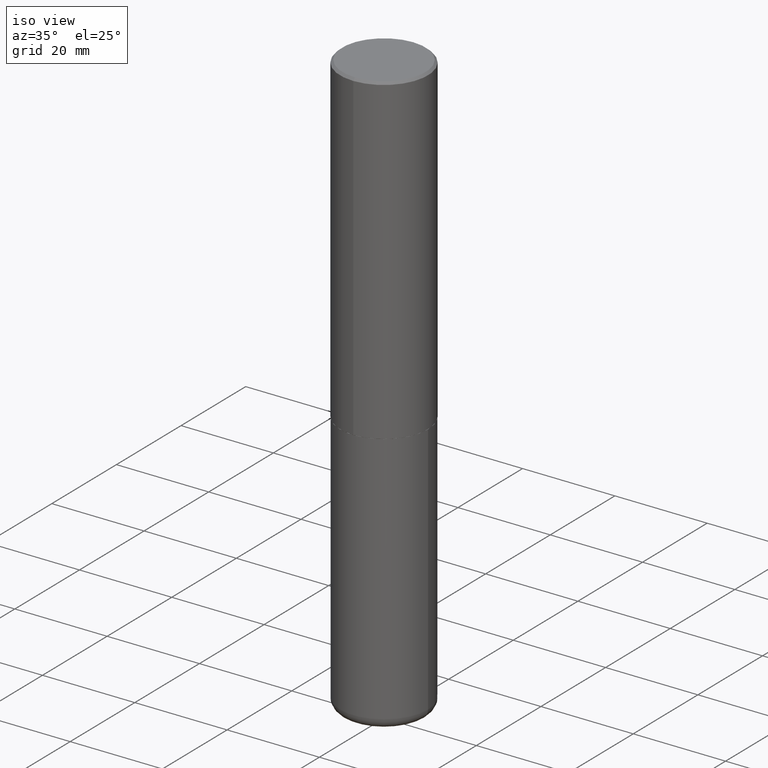
[diagram: clean part render]
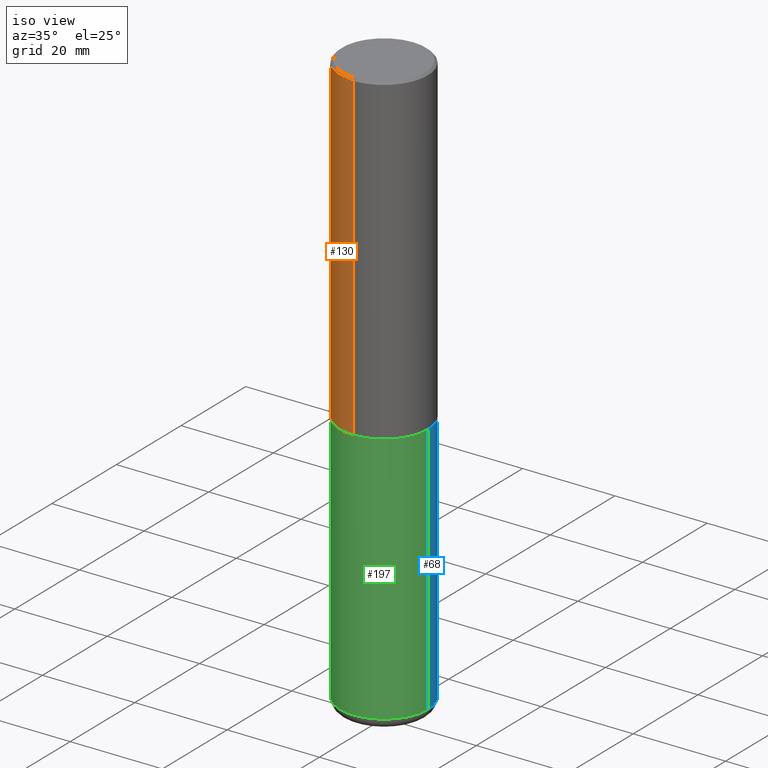
[diagram: same view with three faces highlighted in distinct colors, each labeled with its STEP entity id]
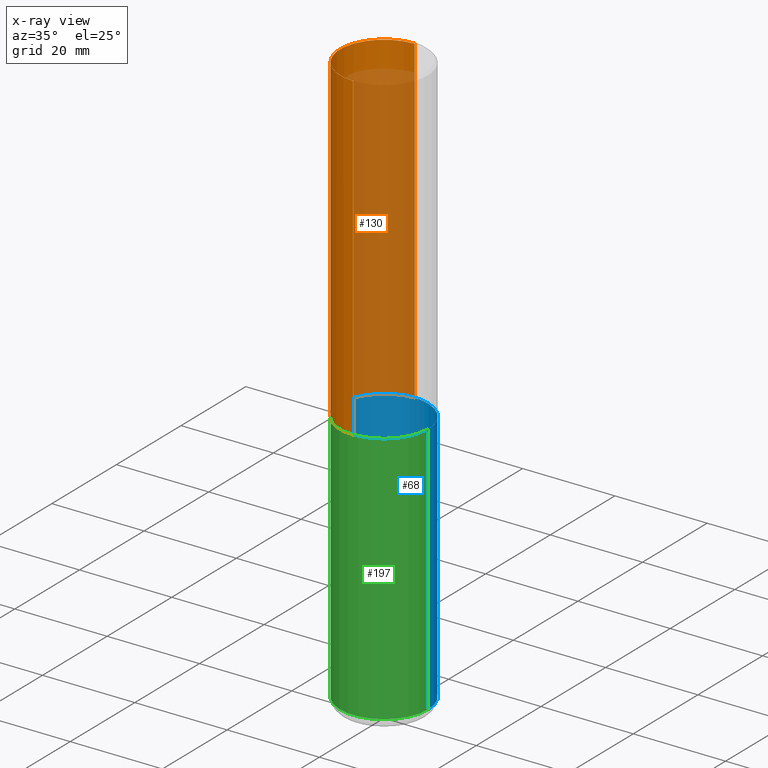
[diagram: x-ray of the same camera — body ghosted, the three highlighted faces saturated]
A machine part, iso view with three faces highlighted in distinct colors.
The next image is the same camera in x-ray (body ghosted, the three faces saturated) — at least one of them is partly hidden behind the body in this view.
Their STEP definitions:

[orange] entity #130 — the highlighted cylindrical surface (partial cylindrical patch) has radius 9.525 mm, axis along (-0, 0, 1).
#3 = EDGE_CURVE ( 'NONE', #241, #293, #377, .T. ) ;
#6 = CARTESIAN_POINT ( 'NONE',  ( 6.724165036897648492E-29, -9.595832025636787455E-15, -2.749000000000000110 ) ) ;
#17 = VECTOR ( 'NONE', #99, 39.37007874015748143 ) ;
#27 = CARTESIAN_POINT ( 'NONE',  ( -2.618611004132351594E-15, -0.3750000000000002220, 1.308998548422625521E-15 ) ) ;
#52 = VERTEX_POINT ( 'NONE', #280 ) ;
#60 = DIRECTION ( 'NONE',  ( -2.446040391741596606E-29, 3.490662795793665557E-15, 1.000000000000000000 ) ) ;
#70 = CARTESIAN_POINT ( 'NONE',  ( 0.000000000000000000, 0.000000000000000000, 0.000000000000000000 ) ) ;
#72 = CIRCLE ( 'NONE', #303, 0.3750000000000000555 ) ;
#84 = ORIENTED_EDGE ( 'NONE', *, *, #3, .T. ) ;
#99 = DIRECTION ( 'NONE',  ( -2.446040391741596606E-29, 3.490662795793665557E-15, 1.000000000000000000 ) ) ;
#105 = FACE_OUTER_BOUND ( 'NONE', #403, .T. ) ;
#130 = ADVANCED_FACE ( 'NONE', ( #105 ), #386, .T. ) ;
#131 = CARTESIAN_POINT ( 'NONE',  ( -2.618611004132284935E-15, -0.3750000000000099920, -2.748999999999999222 ) ) ;
#146 = CARTESIAN_POINT ( 'NONE',  ( 2.664535259100411196E-15, 0.3749999999999907296, -2.749000000000000998 ) ) ;
#164 = CARTESIAN_POINT ( 'NONE',  ( 2.664535259100376880E-15, 0.3750000000000002220, -1.308998548422625521E-15 ) ) ;
#169 = ORIENTED_EDGE ( 'NONE', *, *, #283, .T. ) ;
#202 = CARTESIAN_POINT ( 'NONE',  ( -2.572686749164323547E-15, -0.3750000000000001110, -0.01999999999999877570 ) ) ;
#203 = EDGE_CURVE ( 'NONE', #348, #52, #417, .T. ) ;
#212 = CARTESIAN_POINT ( 'NONE',  ( 4.892080783483214581E-31, -6.981325591587361238E-17, -0.02000000000000008715 ) ) ;
#241 = VERTEX_POINT ( 'NONE', #131 ) ;
#247 = ORIENTED_EDGE ( 'NONE', *, *, #372, .F. ) ;
#264 = DIRECTION ( 'NONE',  ( -6.982962677686266711E-15, -1.000000000000000000, 3.490662795793665951E-15 ) ) ;
#265 = CIRCLE ( 'NONE', #317, 0.3750000000000003886 ) ;
#280 = CARTESIAN_POINT ( 'NONE',  ( 2.618611004132350411E-15, 0.3749999999999999445, -0.02000000000000139513 ) ) ;
#283 = EDGE_CURVE ( 'NONE', #348, #241, #265, .T. ) ;
#290 = DIRECTION ( 'NONE',  ( -2.446040391741596606E-29, 3.490662795793665557E-15, 1.000000000000000000 ) ) ;
#293 = VERTEX_POINT ( 'NONE', #202 ) ;
#303 = AXIS2_PLACEMENT_3D ( 'NONE', #212, #335, #395 ) ;
#317 = AXIS2_PLACEMENT_3D ( 'NONE', #6, #362, #387 ) ;
#335 = DIRECTION ( 'NONE',  ( -2.446040391741596606E-29, 3.490662795793665557E-15, 1.000000000000000000 ) ) ;
#348 = VERTEX_POINT ( 'NONE', #146 ) ;
#351 = ORIENTED_EDGE ( 'NONE', *, *, #203, .F. ) ;
#362 = DIRECTION ( 'NONE',  ( -2.446040391741596606E-29, 3.490662795793665557E-15, 1.000000000000000000 ) ) ;
#368 = VECTOR ( 'NONE', #60, 39.37007874015748143 ) ;
#372 = EDGE_CURVE ( 'NONE', #52, #293, #72, .T. ) ;
#377 = LINE ( 'NONE', #27, #368 ) ;
#386 = CYLINDRICAL_SURFACE ( 'NONE', #405, 0.3750000000000002220 ) ;
#387 = DIRECTION ( 'NONE',  ( -6.982962677686265922E-15, -1.000000000000000000, 2.913971193241877611E-15 ) ) ;
#395 = DIRECTION ( 'NONE',  ( -6.982962677686265922E-15, -1.000000000000000000, 3.494488891895536035E-15 ) ) ;
#403 = EDGE_LOOP ( 'NONE', ( #351, #169, #84, #247 ) ) ;
#405 = AXIS2_PLACEMENT_3D ( 'NONE', #70, #290, #264 ) ;
#417 = LINE ( 'NONE', #164, #17 ) ;

[blue] entity #68 — the highlighted cylindrical surface (partial cylindrical patch) has radius 9.525 mm, axis along (-0, 0, 1).
#2 = DIRECTION ( 'NONE',  ( 1.000000000000000000, -6.982962677686269077E-15, 0.000000000000000000 ) ) ;
#16 = EDGE_CURVE ( 'NONE', #366, #381, #24, .T. ) ;
#19 = CARTESIAN_POINT ( 'NONE',  ( 0.3750000000000000555, -1.222018468595100145E-14, -2.750000000000000000 ) ) ;
#24 = LINE ( 'NONE', #414, #339 ) ;
#45 = ORIENTED_EDGE ( 'NONE', *, *, #300, .F. ) ;
#46 = LINE ( 'NONE', #148, #170 ) ;
#51 = DIRECTION ( 'NONE',  ( -2.445468806185136877E-29, 3.491481338843145188E-15, 1.000000000000000000 ) ) ;
#55 = CYLINDRICAL_SURFACE ( 'NONE', #141, 0.3749999999999999445 ) ;
#58 = DIRECTION ( 'NONE',  ( -2.445468806185136877E-29, 3.491481338843145188E-15, 1.000000000000000000 ) ) ;
#68 = ADVANCED_FACE ( 'NONE', ( #154 ), #55, .T. ) ;
#78 = ORIENTED_EDGE ( 'NONE', *, *, #408, .T. ) ;
#100 = DIRECTION ( 'NONE',  ( -2.445468806185136597E-29, 3.491481338843145583E-15, 1.000000000000000000 ) ) ;
#128 = CARTESIAN_POINT ( 'NONE',  ( 0.000000000000000000, 0.000000000000000000, 0.000000000000000000 ) ) ;
#129 = DIRECTION ( 'NONE',  ( 1.000000000000000000, -6.982962677686266711E-15, 4.876176775795935793E-29 ) ) ;
#141 = AXIS2_PLACEMENT_3D ( 'NONE', #128, #256, #129 ) ;
#148 = CARTESIAN_POINT ( 'NONE',  ( -0.3749999999999999445, 2.664535259100375303E-15, -1.844600658845589318E-29 ) ) ;
#154 = FACE_OUTER_BOUND ( 'NONE', #297, .T. ) ;
#163 = ORIENTED_EDGE ( 'NONE', *, *, #307, .T. ) ;
#170 = VECTOR ( 'NONE', #51, 39.37007874015748143 ) ;
#199 = CIRCLE ( 'NONE', #211, 0.3749999999999999445 ) ;
#206 = VERTEX_POINT ( 'NONE', #358 ) ;
#211 = AXIS2_PLACEMENT_3D ( 'NONE', #384, #100, #2 ) ;
#242 = AXIS2_PLACEMENT_3D ( 'NONE', #320, #328, #258 ) ;
#256 = DIRECTION ( 'NONE',  ( -2.445468806185136597E-29, 3.491481338843145583E-15, 1.000000000000000000 ) ) ;
#258 = DIRECTION ( 'NONE',  ( 1.000000000000000000, -6.982962677686266711E-15, 0.000000000000000000 ) ) ;
#261 = ORIENTED_EDGE ( 'NONE', *, *, #16, .F. ) ;
#297 = EDGE_LOOP ( 'NONE', ( #163, #78, #45, #261 ) ) ;
#300 = EDGE_CURVE ( 'NONE', #381, #306, #374, .T. ) ;
#306 = VERTEX_POINT ( 'NONE', #321 ) ;
#307 = EDGE_CURVE ( 'NONE', #366, #206, #199, .T. ) ;
#320 = CARTESIAN_POINT ( 'NONE',  ( 6.725039217009124520E-29, -9.601573681818649859E-15, -2.750000000000000000 ) ) ;
#321 = CARTESIAN_POINT ( 'NONE',  ( -0.3750000000000000555, -1.070783826866887333E-14, -2.750000000000000000 ) ) ;
#328 = DIRECTION ( 'NONE',  ( -2.445468806185136597E-29, 3.491481338843145583E-15, 1.000000000000000000 ) ) ;
#332 = CARTESIAN_POINT ( 'NONE',  ( 0.3749999999999999445, -1.976178437785219664E-14, -4.910000000000000142 ) ) ;
#339 = VECTOR ( 'NONE', #58, 39.37007874015748143 ) ;
#358 = CARTESIAN_POINT ( 'NONE',  ( -0.3749999999999999445, -1.447863811461947092E-14, -4.910000000000000142 ) ) ;
#366 = VERTEX_POINT ( 'NONE', #332 ) ;
#374 = CIRCLE ( 'NONE', #242, 0.3750000000000000555 ) ;
#381 = VERTEX_POINT ( 'NONE', #19 ) ;
#384 = CARTESIAN_POINT ( 'NONE',  ( 1.200725183836902132E-28, -1.714317337371984662E-14, -4.910000000000000142 ) ) ;
#408 = EDGE_CURVE ( 'NONE', #206, #306, #46, .T. ) ;
#414 = CARTESIAN_POINT ( 'NONE',  ( 0.3749999999999999445, -2.618611004132349622E-15, 1.828566290923475642E-29 ) ) ;

[green] entity #197 — the highlighted cylindrical surface (partial cylindrical patch) has radius 9.525 mm, axis along (-0, 0, 1).
#8 = DIRECTION ( 'NONE',  ( 1.000000000000000000, -6.982962677686269077E-15, 0.000000000000000000 ) ) ;
#16 = EDGE_CURVE ( 'NONE', #366, #381, #24, .T. ) ;
#19 = CARTESIAN_POINT ( 'NONE',  ( 0.3750000000000000555, -1.222018468595100145E-14, -2.750000000000000000 ) ) ;
#24 = LINE ( 'NONE', #414, #339 ) ;
#40 = CARTESIAN_POINT ( 'NONE',  ( 1.200725183836902132E-28, -1.714317337371984662E-14, -4.910000000000000142 ) ) ;
#46 = LINE ( 'NONE', #148, #170 ) ;
#51 = DIRECTION ( 'NONE',  ( -2.445468806185136877E-29, 3.491481338843145188E-15, 1.000000000000000000 ) ) ;
#58 = DIRECTION ( 'NONE',  ( -2.445468806185136877E-29, 3.491481338843145188E-15, 1.000000000000000000 ) ) ;
#66 = AXIS2_PLACEMENT_3D ( 'NONE', #410, #126, #380 ) ;
#86 = EDGE_CURVE ( 'NONE', #306, #381, #249, .T. ) ;
#111 = ORIENTED_EDGE ( 'NONE', *, *, #86, .F. ) ;
#126 = DIRECTION ( 'NONE',  ( -2.445468806185136597E-29, 3.491481338843145583E-15, 1.000000000000000000 ) ) ;
#134 = AXIS2_PLACEMENT_3D ( 'NONE', #40, #234, #8 ) ;
#139 = FACE_OUTER_BOUND ( 'NONE', #266, .T. ) ;
#148 = CARTESIAN_POINT ( 'NONE',  ( -0.3749999999999999445, 2.664535259100375303E-15, -1.844600658845589318E-29 ) ) ;
#152 = ORIENTED_EDGE ( 'NONE', *, *, #408, .F. ) ;
#166 = CYLINDRICAL_SURFACE ( 'NONE', #168, 0.3749999999999999445 ) ;
#168 = AXIS2_PLACEMENT_3D ( 'NONE', #198, #289, #171 ) ;
#170 = VECTOR ( 'NONE', #51, 39.37007874015748143 ) ;
#171 = DIRECTION ( 'NONE',  ( 1.000000000000000000, -6.982962677686266711E-15, 4.876176775795935793E-29 ) ) ;
#185 = ORIENTED_EDGE ( 'NONE', *, *, #16, .T. ) ;
#197 = ADVANCED_FACE ( 'NONE', ( #139 ), #166, .T. ) ;
#198 = CARTESIAN_POINT ( 'NONE',  ( 0.000000000000000000, 0.000000000000000000, 0.000000000000000000 ) ) ;
#206 = VERTEX_POINT ( 'NONE', #358 ) ;
#234 = DIRECTION ( 'NONE',  ( -2.445468806185136597E-29, 3.491481338843145583E-15, 1.000000000000000000 ) ) ;
#249 = CIRCLE ( 'NONE', #66, 0.3750000000000000555 ) ;
#266 = EDGE_LOOP ( 'NONE', ( #152, #323, #185, #111 ) ) ;
#289 = DIRECTION ( 'NONE',  ( -2.445468806185136597E-29, 3.491481338843145583E-15, 1.000000000000000000 ) ) ;
#306 = VERTEX_POINT ( 'NONE', #321 ) ;
#311 = CIRCLE ( 'NONE', #134, 0.3749999999999999445 ) ;
#319 = EDGE_CURVE ( 'NONE', #206, #366, #311, .T. ) ;
#321 = CARTESIAN_POINT ( 'NONE',  ( -0.3750000000000000555, -1.070783826866887333E-14, -2.750000000000000000 ) ) ;
#323 = ORIENTED_EDGE ( 'NONE', *, *, #319, .T. ) ;
#332 = CARTESIAN_POINT ( 'NONE',  ( 0.3749999999999999445, -1.976178437785219664E-14, -4.910000000000000142 ) ) ;
#339 = VECTOR ( 'NONE', #58, 39.37007874015748143 ) ;
#358 = CARTESIAN_POINT ( 'NONE',  ( -0.3749999999999999445, -1.447863811461947092E-14, -4.910000000000000142 ) ) ;
#366 = VERTEX_POINT ( 'NONE', #332 ) ;
#380 = DIRECTION ( 'NONE',  ( 1.000000000000000000, -6.982962677686266711E-15, 0.000000000000000000 ) ) ;
#381 = VERTEX_POINT ( 'NONE', #19 ) ;
#408 = EDGE_CURVE ( 'NONE', #206, #306, #46, .T. ) ;
#410 = CARTESIAN_POINT ( 'NONE',  ( 6.725039217009124520E-29, -9.601573681818649859E-15, -2.750000000000000000 ) ) ;
#414 = CARTESIAN_POINT ( 'NONE',  ( 0.3749999999999999445, -2.618611004132349622E-15, 1.828566290923475642E-29 ) ) ;